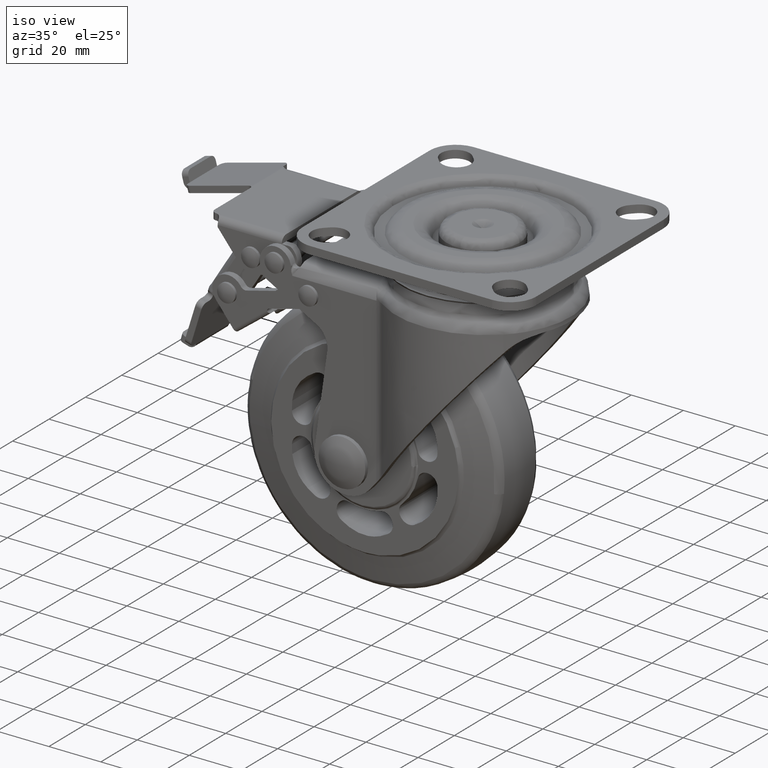
[diagram: clean part render]
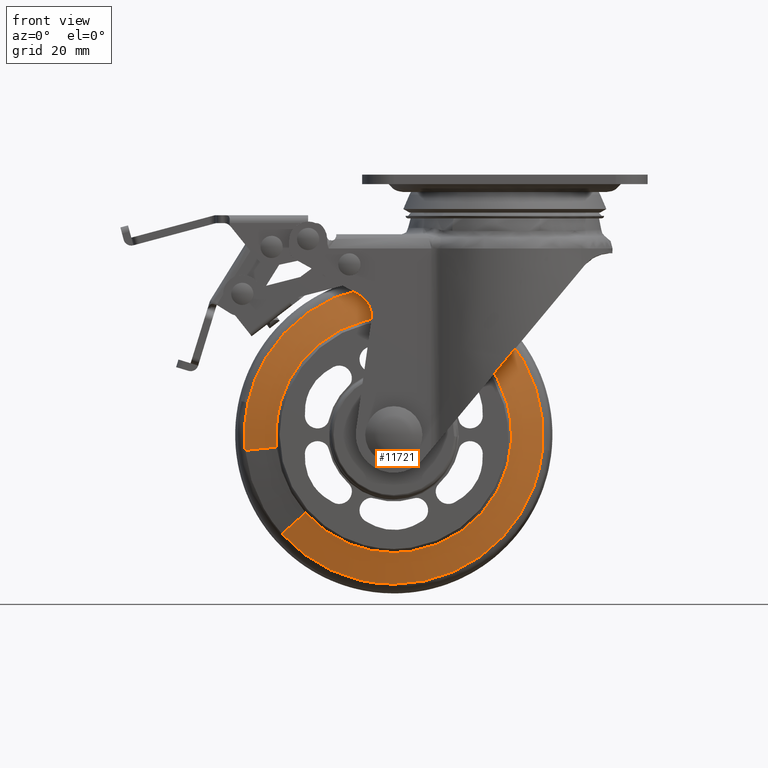
[diagram: tour spotlight — one face highlighted and labeled with its STEP entity id]
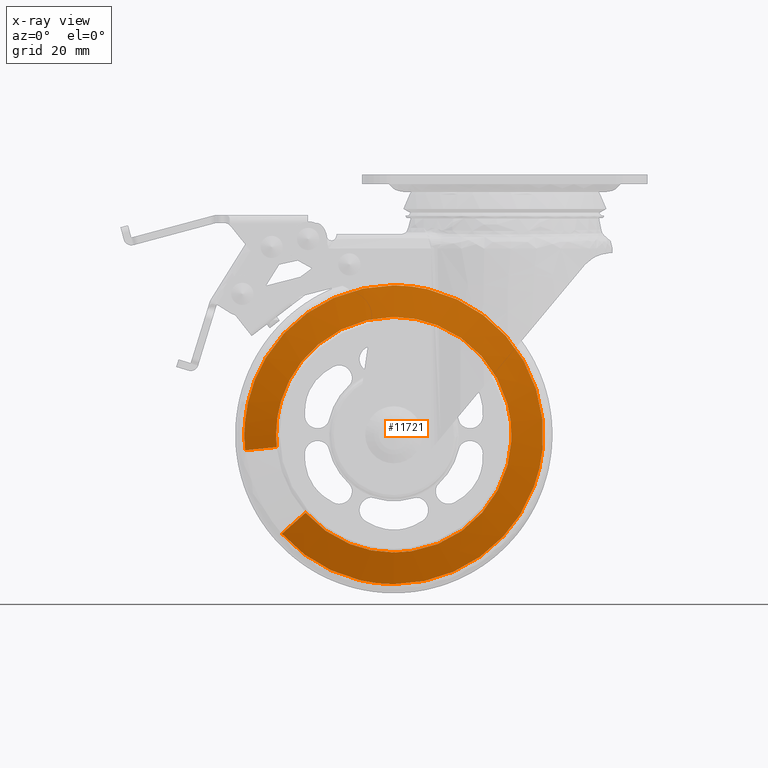
[diagram: x-ray of the same camera — body ghosted, this tour face saturated]
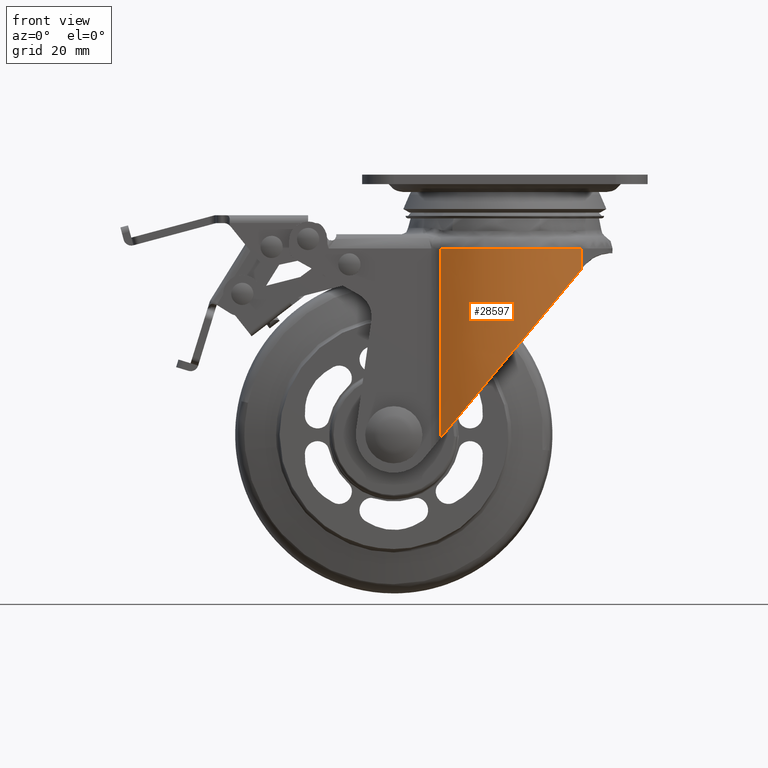
[diagram: tour spotlight — one face highlighted and labeled with its STEP entity id]
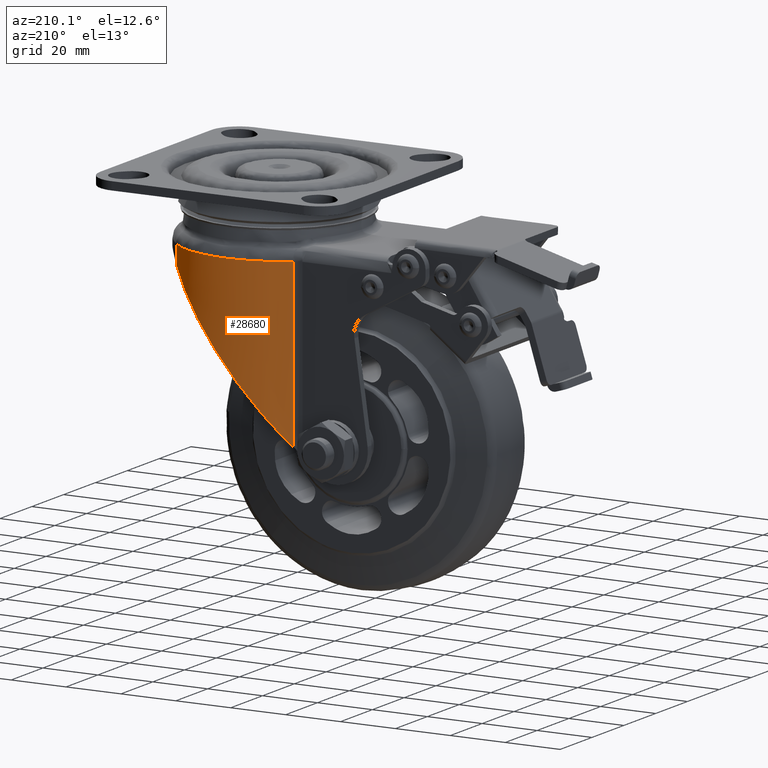
[diagram: tour spotlight — one face highlighted and labeled with its STEP entity id]
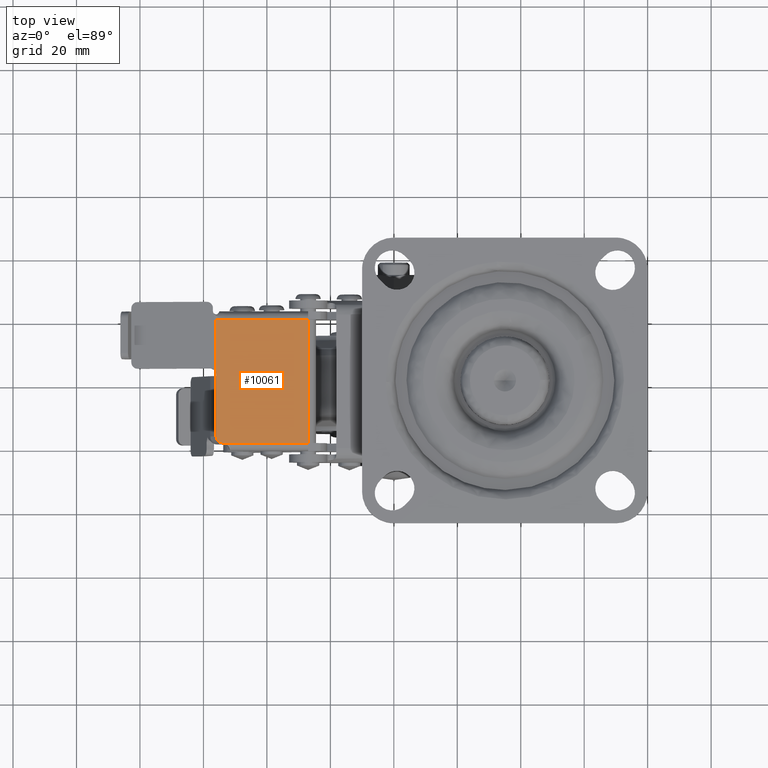
[diagram: tour spotlight — one face highlighted and labeled with its STEP entity id]
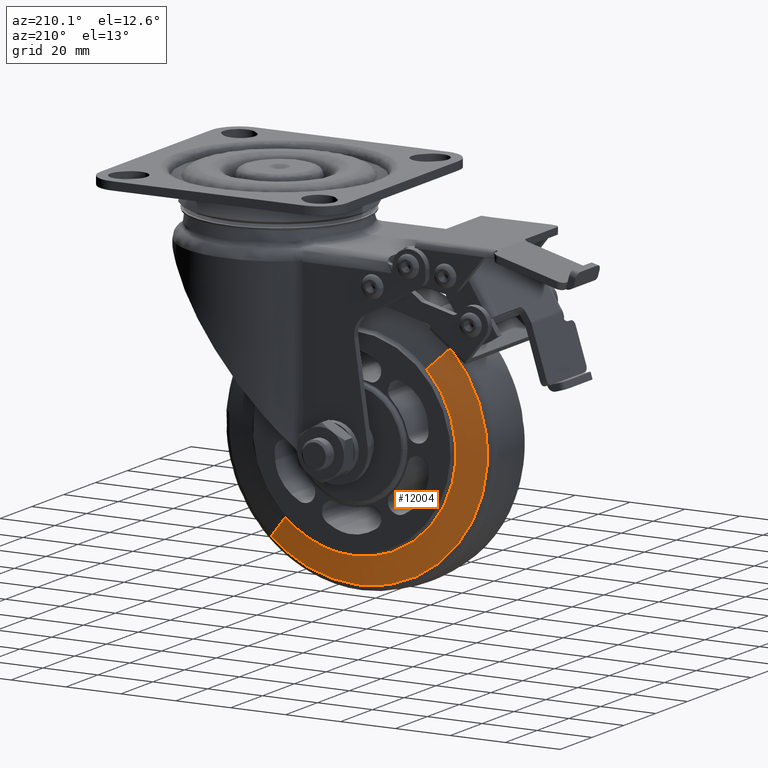
[diagram: tour spotlight — one face highlighted and labeled with its STEP entity id]
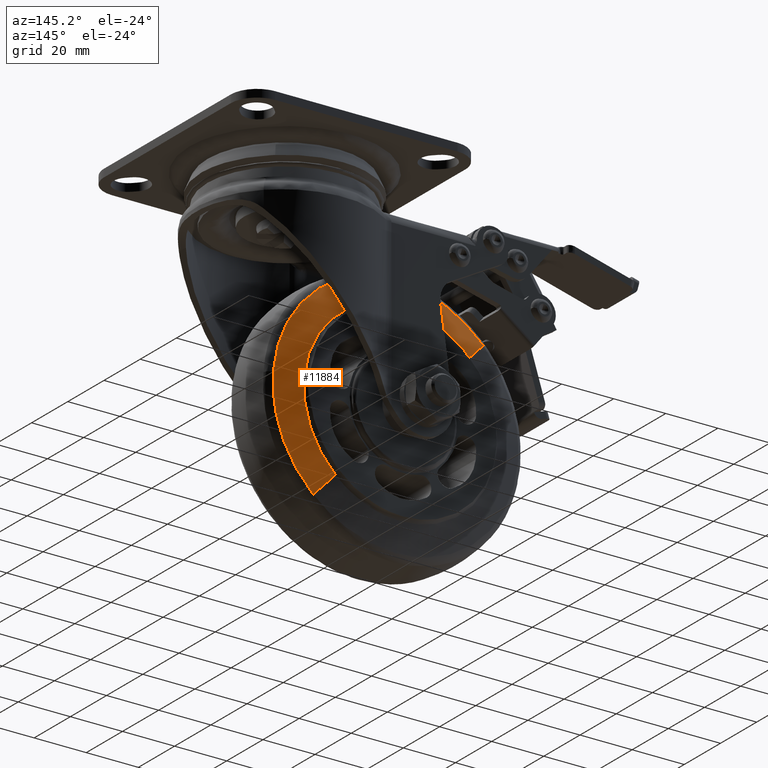
[diagram: tour spotlight — one face highlighted and labeled with its STEP entity id]
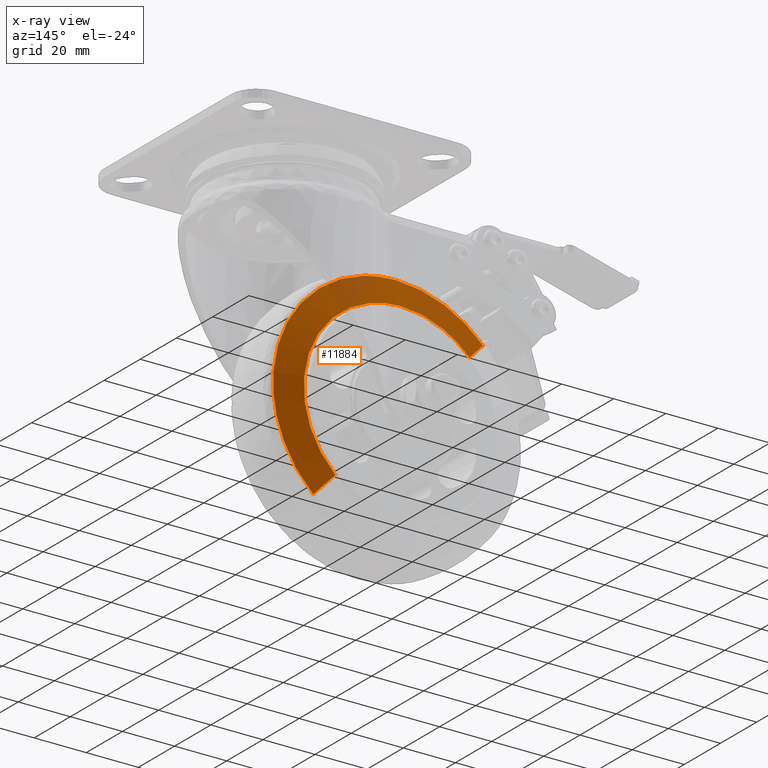
[diagram: x-ray of the same camera — body ghosted, this tour face saturated]
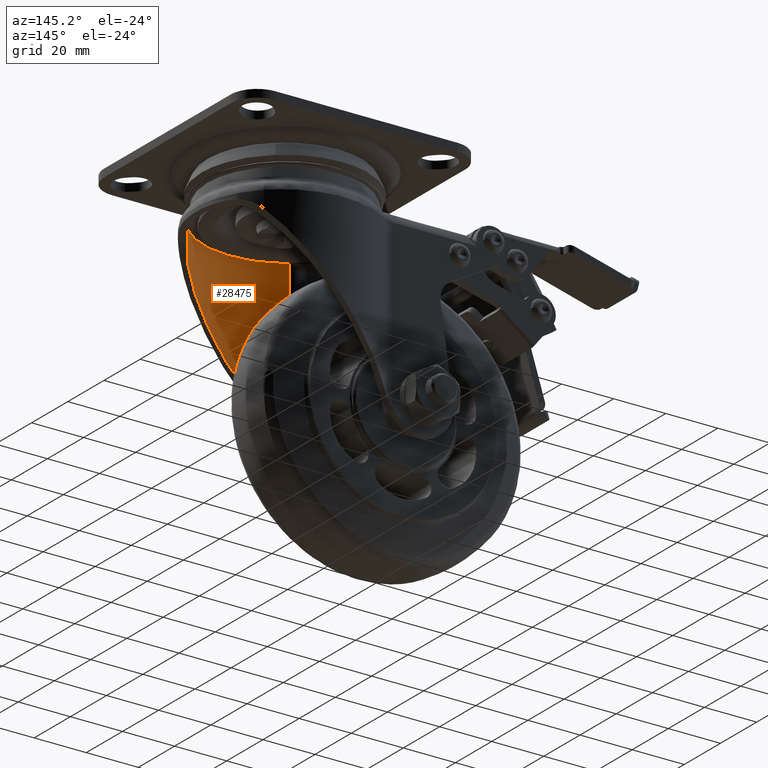
[diagram: tour spotlight — one face highlighted and labeled with its STEP entity id]
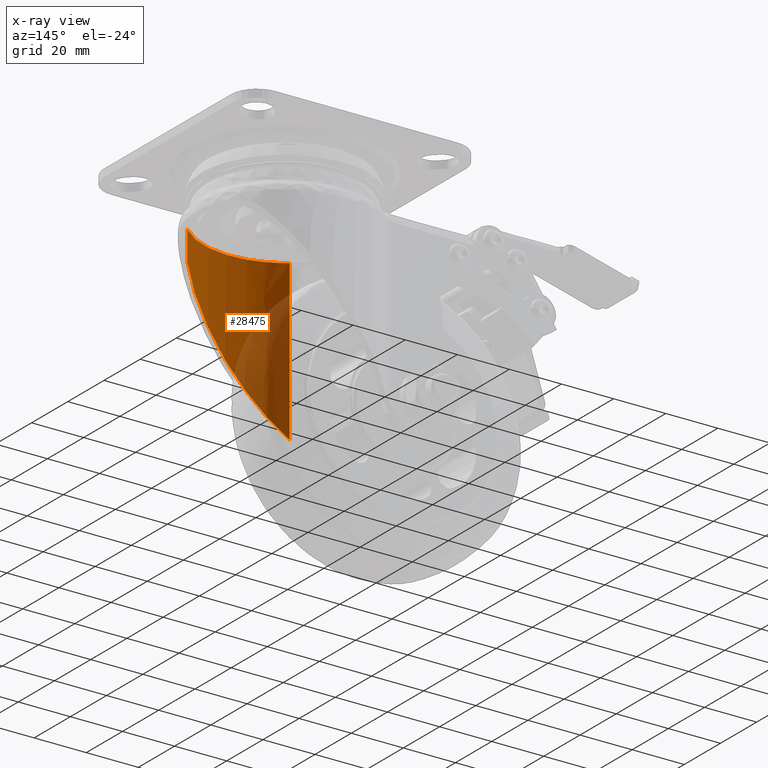
[diagram: x-ray of the same camera — body ghosted, this tour face saturated]
A machine part: a face-by-face anatomy tour. The part has 502 B-rep faces; the first image is the clean iso view, then the 7 largest visible faces are spotlighted one at a time (largest first), each with its STEP entity span.

Face 1 — front view, entity #11721. An x-ray twin of the same camera follows (body ghosted, this face saturated) — the face is partly hidden behind the body. In plain terms, the highlighted face is a freeform B-spline surface patch.
Definition (entity closure, byte-faithful):
#11510=CARTESIAN_POINT('',(-36.665251392505716,-13.616647339635406,-3.835200967554579));
#11511=CARTESIAN_POINT('',(-38.639300764044314,-13.616647339635412,15.037086842393304));
#11512=CARTESIAN_POINT('',(-24.427678613804989,-13.616647339635399,27.610468009032871));
#11513=CARTESIAN_POINT('',(3.182789395227887,-13.616647339635403,52.038146622837857));
#11514=CARTESIAN_POINT('',(27.610468009032871,-13.616647339635399,24.427678613804989));
#11515=CARTESIAN_POINT('',(52.038146622837857,-13.616647339635403,-3.182789395227887));
#11516=CARTESIAN_POINT('',(24.427678613804989,-13.616647339635399,-27.610468009032871));
#11517=CARTESIAN_POINT('',(-3.182789395227887,-13.616647339635403,-52.038146622837857));
#11518=CARTESIAN_POINT('',(-27.610468009032871,-13.616647339635399,-24.427678613804989));
#11519=CARTESIAN_POINT('',(-47.083662741596818,-10.831326102932731,-4.924971247830982));
#11520=CARTESIAN_POINT('',(-49.618637174194930,-10.831326102932731,19.309866934338359));
#11521=CARTESIAN_POINT('',(-31.368790277750499,-10.831326102932730,35.455967557900593));
#11522=CARTESIAN_POINT('',(4.087177280150087,-10.831326102932731,66.824757835651084));
#11523=CARTESIAN_POINT('',(35.455967557900593,-10.831326102932730,31.368790277750499));
#11524=CARTESIAN_POINT('',(66.824757835651084,-10.831326102932731,-4.087177280150087));
#11525=CARTESIAN_POINT('',(31.368790277750499,-10.831326102932730,-35.455967557900593));
#11526=CARTESIAN_POINT('',(-4.087177280150087,-10.831326102932731,-66.824757835651084));
#11527=CARTESIAN_POINT('',(-35.455967557900593,-10.831326102932730,-31.368790277750499));
#11535=(BOUNDED_SURFACE()B_SPLINE_SURFACE(2,1,((#11510,#11519),(#11511,#11520),(#11512,#11521),(#11513,#11522),(#11514,#11523),(#11515,#11524),(#11516,#11525),(#11517,#11526),(#11518,#11527)),.UNSPECIFIED.,.F.,.F.,.U.)B_SPLINE_SURFACE_WITH_KNOTS((3,2,2,2,3),(2,2),(0.0,47.061823993774993,125.498197316733300,203.934570639691710,282.370943962650020),(0.0,10.839230078482091),.UNSPECIFIED.)GEOMETRIC_REPRESENTATION_ITEM()RATIONAL_B_SPLINE_SURFACE(((0.859411254969543,0.859411254969543),(0.824264068711928,0.824264068711928),(1.0,1.0),(0.707106781186548,0.707106781186548),(1.0,1.0),(0.707106781186548,0.707106781186548),(1.0,1.0),(0.707106781186548,0.707106781186548),(1.0,1.0)))REPRESENTATION_ITEM('')SURFACE());
#11536=CARTESIAN_POINT('',(-37.114549942680163,-13.550369614932199,-0.000001801757048));
#11537=VERTEX_POINT('',#11536);
#11538=CARTESIAN_POINT('',(-36.913161374811978,-13.550369590192620,-3.861132457667963));
#11539=VERTEX_POINT('',#11538);
#11540=CARTESIAN_POINT('',(-37.114549942680163,-13.550369614932199,-0.000001801757048));
#11541=CARTESIAN_POINT('',(-37.114567235197661,-13.550369606670740,-1.289377918559623));
#11542=CARTESIAN_POINT('',(-37.047311808338677,-13.550369598409240,-2.578753876148766));
#11543=CARTESIAN_POINT('',(-36.913161374811978,-13.550369590192620,-3.861132457667963));
#11544=B_SPLINE_CURVE_WITH_KNOTS('',3,(#11540,#11541,#11542,#11543),.UNSPECIFIED.,.F.,.U.,(4,4),(4.386198E-010,3.868136360919361),.UNSPECIFIED.);
#11545=EDGE_CURVE('',#11537,#11539,#11544,.T.);
#11546=ORIENTED_EDGE('',*,*,#11545,.F.);
#11547=CARTESIAN_POINT('',(0.0,-13.550369614932199,37.114549942680199));
#11548=VERTEX_POINT('',#11547);
#11549=CARTESIAN_POINT('',(0.0,-13.550369614932199,37.114549942680199));
#11550=CARTESIAN_POINT('',(-2.125491910181842,-13.550369614932190,37.114704196811623));
#11551=CARTESIAN_POINT('',(-6.300543484334653,-13.550369614932210,36.754987460956791));
#11552=CARTESIAN_POINT('',(-11.681724559365209,-13.550369614932180,35.354251953060107));
#11553=CARTESIAN_POINT('',(-16.668759139261400,-13.550369614932221,33.288545492949943));
#11554=CARTESIAN_POINT('',(-21.669188854939762,-13.550369614932279,30.374443795508888));
#11555=CARTESIAN_POINT('',(-26.430333533427881,-13.550369614931970,26.318230018142369));
#11556=CARTESIAN_POINT('',(-30.030038652586629,-13.550369614932320,21.985923363355258));
#11557=CARTESIAN_POINT('',(-32.755253993407898,-13.550369614932141,17.682433881584419));
#11558=CARTESIAN_POINT('',(-34.574498470222167,-13.550369614932229,13.742550687607320));
#11559=CARTESIAN_POINT('',(-36.048123823442438,-13.550369614932199,9.188187287830978));
#11560=CARTESIAN_POINT('',(-36.909385160773873,-13.550369614932190,4.858264778941543));
#11561=CARTESIAN_POINT('',(-37.114581730324069,-13.550369614932210,1.518195979068340));
#11562=CARTESIAN_POINT('',(-37.114549942680163,-13.550369614932199,-0.000001801757048));
#11563=B_SPLINE_CURVE_WITH_KNOTS('',3,(#11549,#11550,#11551,#11552,#11553,#11554,#11555,#11556,#11557,#11558,#11559,#11560,#11561,#11562),.UNSPECIFIED.,.F.,.U.,(4,1,1,1,1,1,1,1,1,1,1,4),(0.000000084953378,6.376467333674910,12.525276525188120,16.624475284585380,22.545546127842361,29.832913040827520,35.298520092446822,39.397682966669457,45.091016416197583,48.279285932825807,53.744887889776621,58.299491190945602),.UNSPECIFIED.);
#11564=EDGE_CURVE('',#11548,#11537,#11563,.T.);
#11565=ORIENTED_EDGE('',*,*,#11564,.F.);
#11566=CARTESIAN_POINT('',(35.804168890937980,-13.550369618357530,9.775034860328475));
#11567=VERTEX_POINT('',#11566);
#11568=CARTESIAN_POINT('',(35.804168890937980,-13.550369618357530,9.775034860328475));
#11569=CARTESIAN_POINT('',(35.389184747907002,-13.550369618167100,11.295165833597849));
#11570=CARTESIAN_POINT('',(34.201479568026059,-13.550369617732860,14.760498939624950));
#11571=CARTESIAN_POINT('',(31.699442207876132,-13.550369617127821,19.590774005635371));
#11572=CARTESIAN_POINT('',(28.707311454808249,-13.550369616617120,23.665527742670228));
#11573=CARTESIAN_POINT('',(25.513720996335380,-13.550369616190469,27.072486627939011));
#11574=CARTESIAN_POINT('',(21.456648899374350,-13.550369615761630,30.493888498453050));
#11575=CARTESIAN_POINT('',(16.553527886787808,-13.550369615397759,33.399417192823947));
#11576=CARTESIAN_POINT('',(11.909600954121499,-13.550369615168959,35.224212023927869));
#11577=CARTESIAN_POINT('',(6.681053585525619,-13.550369614987851,36.671623667965889));
#11578=CARTESIAN_POINT('',(2.836456494028836,-13.550369614931819,37.115166211656728));
#11579=CARTESIAN_POINT('',(0.0,-13.550369614932199,37.114549942680199));
#11580=B_SPLINE_CURVE_WITH_KNOTS('',3,(#11568,#11569,#11570,#11571,#11572,#11573,#11574,#11575,#11576,#11577,#11578,#11579),.UNSPECIFIED.,.F.,.U.,(4,1,1,1,1,1,1,1,1,4),(0.000000061339854,4.727282053475136,10.967370127355000,16.261990860228959,19.854768855743551,24.960184812077760,32.145736283834530,36.873074768503699,39.898562197790000,48.407726145202410),.UNSPECIFIED.);
#11581=EDGE_CURVE('',#11567,#11548,#11580,.T.);
#11582=ORIENTED_EDGE('',*,*,#11581,.F.);
#11583=CARTESIAN_POINT('',(5.575555129735005,-13.550369615879010,-36.693364552445352));
#11584=VERTEX_POINT('',#11583);
#11585=CARTESIAN_POINT('',(5.575555129735005,-13.550369615879010,-36.693364552445352));
#11586=CARTESIAN_POINT('',(7.831811697776101,-13.550369615674400,-36.350820354751541));
#11587=CARTESIAN_POINT('',(11.088894158506820,-13.550369615418351,-35.542803297705852));
#11588=CARTESIAN_POINT('',(15.865348879003619,-13.550369615131229,-33.645669970755101));
#11589=CARTESIAN_POINT('',(20.039768891835500,-13.550369614953690,-31.401100306182180));
#11590=CARTESIAN_POINT('',(24.034194266430848,-13.550369614887810,-28.417023223242659));
#11591=CARTESIAN_POINT('',(27.783986506973381,-13.550369614930160,-24.780560410437118));
#11592=CARTESIAN_POINT('',(30.763859365055360,-13.550369615076420,-20.985727187448500));
#11593=CARTESIAN_POINT('',(33.337600769366382,-13.550369615349570,-16.532197461022971));
#11594=CARTESIAN_POINT('',(35.336190806522062,-13.550369615721401,-11.790327337180489));
#11595=CARTESIAN_POINT('',(36.553185285474918,-13.550369616180770,-7.036873679229863));
#11596=CARTESIAN_POINT('',(37.191911174398953,-13.550369616776740,-1.689063029061967));
#11597=CARTESIAN_POINT('',(37.104612661321347,-13.550369617459101,3.709156728143346));
#11598=CARTESIAN_POINT('',(36.340932586166552,-13.550369618053789,7.809428092570522));
#11599=CARTESIAN_POINT('',(35.804168890937980,-13.550369618357530,9.775034860328475));
#11600=B_SPLINE_CURVE_WITH_KNOTS('',3,(#11585,#11586,#11587,#11588,#11589,#11590,#11591,#11592,#11593,#11594,#11595,#11596,#11597,#11598,#11599),.UNSPECIFIED.,.F.,.U.,(4,1,1,1,1,1,1,1,1,1,1,1,4),(0.000000095696294,6.846262174356134,10.024874065644800,15.404114474508569,21.027849583416209,24.940013470265061,31.052786746978310,35.453911062258392,40.344107081192462,46.456848952765782,50.124512756655427,56.481755977588797,62.594494556041127),.UNSPECIFIED.);
#11601=EDGE_CURVE('',#11584,#11567,#11600,.T.);
#11602=ORIENTED_EDGE('',*,*,#11601,.F.);
#11603=CARTESIAN_POINT('',(0.0,-13.550369614932199,-37.114549942680199));
#11604=VERTEX_POINT('',#11603);
#11605=CARTESIAN_POINT('',(0.0,-13.550369614932199,-37.114549942680199));
#11606=CARTESIAN_POINT('',(1.865586214738752,-13.550369614932020,-37.114629853354103));
#11607=CARTESIAN_POINT('',(3.731150038557266,-13.550369615248901,-36.973675442732898));
#11608=CARTESIAN_POINT('',(5.575555129735005,-13.550369615879010,-36.693364552445352));
#11609=B_SPLINE_CURVE_WITH_KNOTS('',3,(#11605,#11606,#11607,#11608),.UNSPECIFIED.,.F.,.U.,(4,4),(6.864180E-010,5.596747455663808),.UNSPECIFIED.);
#11610=EDGE_CURVE('',#11604,#11584,#11609,.T.);
#11611=ORIENTED_EDGE('',*,*,#11610,.F.);
#11612=CARTESIAN_POINT('',(-27.797155151657670,-13.550369503904889,-24.592845445453481));
#11613=VERTEX_POINT('',#11612);
#11614=CARTESIAN_POINT('',(-27.797155151657670,-13.550369503904889,-24.592845445453481));
#11615=CARTESIAN_POINT('',(-26.279410921820268,-13.550369509967050,-26.308772995427589));
#11616=CARTESIAN_POINT('',(-23.883091265649799,-13.550369519538430,-28.558090187612130));
#11617=CARTESIAN_POINT('',(-20.022462261329551,-13.550369534958559,-31.323720631201720));
#11618=CARTESIAN_POINT('',(-16.329122964555811,-13.550369549710480,-33.450491590015147));
#11619=CARTESIAN_POINT('',(-12.004733763821070,-13.550369566982919,-35.228883888968703));
#11620=CARTESIAN_POINT('',(-6.463234366956493,-13.550369589116791,-36.710363857166882));
#11621=CARTESIAN_POINT('',(-2.536295913334896,-13.550369604801730,-37.114912789517298));
#11622=CARTESIAN_POINT('',(0.0,-13.550369614932199,-37.114549942680199));
#11623=B_SPLINE_CURVE_WITH_KNOTS('',3,(#11614,#11615,#11616,#11617,#11618,#11619,#11620,#11621,#11622),.UNSPECIFIED.,.F.,.U.,(4,1,1,1,1,1,4),(0.000000026665344,6.872458894888915,9.817799502680760,14.235838979649809,19.635594897732268,23.808162547695218,31.416955813785648),.UNSPECIFIED.);
#11624=EDGE_CURVE('',#11613,#11604,#11623,.T.);
#11625=ORIENTED_EDGE('',*,*,#11624,.F.);
#11626=CARTESIAN_POINT('',(-35.264613903331380,-10.899260769740360,-31.199494865088411));
#11627=VERTEX_POINT('',#11626);
#11628=CARTESIAN_POINT('',(-27.797155151657670,-13.550369503904889,-24.592845445453481));
#11629=CARTESIAN_POINT('',(-35.264613903331380,-10.899260769740360,-31.199494865088411));
#11630=QUASI_UNIFORM_CURVE('',1,(#11628,#11629),.UNSPECIFIED.,.F.,.U.);
#11631=EDGE_CURVE('',#11613,#11627,#11630,.T.);
#11632=ORIENTED_EDGE('',*,*,#11631,.T.);
#11633=CARTESIAN_POINT('',(0.0,-10.899260769657021,-47.085045116440398));
#11634=VERTEX_POINT('',#11633);
#11635=CARTESIAN_POINT('',(-35.264613903331380,-10.899260769740360,-31.199494865088411));
#11636=CARTESIAN_POINT('',(-33.614111556737377,-10.899260769814090,-33.065295161705862));
#11637=CARTESIAN_POINT('',(-30.915476593636800,-10.899260769903600,-35.666709849564441));
#11638=CARTESIAN_POINT('',(-26.195085465381599,-10.899260769992560,-39.240944069706522));
#11639=CARTESIAN_POINT('',(-21.283967291364071,-10.899260770031219,-42.178113464679988));
#11640=CARTESIAN_POINT('',(-15.620917648156061,-10.899260770005380,-44.550897074436513));
#11641=CARTESIAN_POINT('',(-8.510848743291794,-10.899260769903620,-46.527455108822913));
#11642=CARTESIAN_POINT('',(-3.425264830462060,-10.899260769772040,-47.085747941997262));
#11643=CARTESIAN_POINT('',(0.0,-10.899260769657021,-47.085045116440398));
#11644=B_SPLINE_CURVE_WITH_KNOTS('',3,(#11635,#11636,#11637,#11638,#11639,#11640,#11641,#11642,#11643),.UNSPECIFIED.,.F.,.U.,(4,1,1,1,1,1,4),(0.000000019208777,7.473150424355872,11.209741512455141,17.748757284914330,24.599127365813739,29.581249683380062,39.856842314858952),.UNSPECIFIED.);
#11645=EDGE_CURVE('',#11627,#11634,#11644,.T.);
#11646=ORIENTED_EDGE('',*,*,#11645,.T.);
#11647=CARTESIAN_POINT('',(46.847313525282672,-10.899260769102071,-4.725535872007858));
#11648=VERTEX_POINT('',#11647);
#11649=CARTESIAN_POINT('',(0.0,-10.899260769657021,-47.085045116440398));
#11650=CARTESIAN_POINT('',(3.064783795955538,-10.899260769657030,-47.085427596890199));
#11651=CARTESIAN_POINT('',(8.473025981953494,-10.899260769650081,-46.555066066842521));
#11652=CARTESIAN_POINT('',(15.790981493440270,-10.899260769623540,-44.530268139413089));
#11653=CARTESIAN_POINT('',(22.244625113507990,-10.899260769586441,-41.698319427949059));
#11654=CARTESIAN_POINT('',(27.674851341910941,-10.899260769541520,-38.272397051752897));
#11655=CARTESIAN_POINT('',(32.447723543290259,-10.899260769489180,-34.269987581114840));
#11656=CARTESIAN_POINT('',(35.790973422651142,-10.899260769442600,-30.718878567189989));
#11657=CARTESIAN_POINT('',(38.867061720059432,-10.899260769390141,-26.712124349054179));
#11658=CARTESIAN_POINT('',(41.779801193838431,-10.899260769328770,-22.036626587513350));
#11659=CARTESIAN_POINT('',(44.356255656167107,-10.899260769253370,-16.256013104774329));
#11660=CARTESIAN_POINT('',(46.069857565528331,-10.899260769174189,-10.264140867099000));
#11661=CARTESIAN_POINT('',(46.666414262999858,-10.899260769125950,-6.519230138372000));
#11662=CARTESIAN_POINT('',(46.847313525282672,-10.899260769102071,-4.725535872007858));
#11663=B_SPLINE_CURVE_WITH_KNOTS('',3,(#11649,#11650,#11651,#11652,#11653,#11654,#11655,#11656,#11657,#11658,#11659,#11660,#11661,#11662),.UNSPECIFIED.,.F.,.U.,(4,1,1,1,1,1,1,1,1,1,1,4),(0.000000068201629,9.194280078329051,16.225218905503151,22.715329097996840,30.287083565680721,35.425018186509860,41.374271276297179,44.889766986196868,50.568597982477449,57.869952666670443,63.819218825852708,69.227606040458326),.UNSPECIFIED.);
#11664=EDGE_CURVE('',#11634,#11648,#11663,.T.);
#11665=ORIENTED_EDGE('',*,*,#11664,.T.);
#11666=CARTESIAN_POINT('',(0.0,-10.899260769657021,47.085045116440398));
#11667=VERTEX_POINT('',#11666);
#11668=CARTESIAN_POINT('',(46.847313525282672,-10.899260769102071,-4.725535872007858));
#11669=CARTESIAN_POINT('',(47.094298642953177,-10.899260769148160,-2.278755326054843));
#11670=CARTESIAN_POINT('',(47.176097231608132,-10.899260769215640,1.420458300327646));
#11671=CARTESIAN_POINT('',(46.609990363494013,-10.899260769317680,7.341098470341240));
#11672=CARTESIAN_POINT('',(45.326516849715190,-10.899260769417999,13.474891162221089));
#11673=CARTESIAN_POINT('',(42.710855121182377,-10.899260769519740,20.293888017642541));
#11674=CARTESIAN_POINT('',(39.253594961895288,-10.899260769599080,26.245653066609350));
#11675=CARTESIAN_POINT('',(35.681257269274930,-10.899260769653701,30.879121697979979));
#11676=CARTESIAN_POINT('',(32.319917328182733,-10.899260769688849,34.338321190290117));
#11677=CARTESIAN_POINT('',(28.181043887123881,-10.899260769718889,37.860807542286857));
#11678=CARTESIAN_POINT('',(23.476136768657199,-10.899260769737280,40.994494827707619));
#11679=CARTESIAN_POINT('',(17.181481911483420,-10.899260769740771,44.013506499200624));
#11680=CARTESIAN_POINT('',(9.529188218378124,-10.899260769722000,46.410907394670353));
#11681=CARTESIAN_POINT('',(3.483910410900142,-10.899260769685251,47.085706216511909));
#11682=CARTESIAN_POINT('',(0.0,-10.899260769657021,47.085045116440398));
#11683=B_SPLINE_CURVE_WITH_KNOTS('',3,(#11668,#11669,#11670,#11671,#11672,#11673,#11674,#11675,#11676,#11677,#11678,#11679,#11680,#11681,#11682),.UNSPECIFIED.,.F.,.U.,(4,1,1,1,1,1,1,1,1,1,1,1,4),(0.000000057458593,7.377620233451182,11.066436378562811,17.829254435394510,26.129110535154670,32.891923074816688,38.425194437475149,43.650932764056599,47.339751177878512,54.717379558074100,60.558006253040382,68.243050790657804,78.694660690848295),.UNSPECIFIED.);
#11684=EDGE_CURVE('',#11648,#11667,#11683,.T.);
#11685=ORIENTED_EDGE('',*,*,#11684,.T.);
#11686=CARTESIAN_POINT('',(-45.988351419628998,-10.899260767242550,10.103118735175119));
#11687=VERTEX_POINT('',#11686);
#11688=CARTESIAN_POINT('',(0.0,-10.899260769657021,47.085045116440398));
#11689=CARTESIAN_POINT('',(-2.574412661450421,-10.899260769656960,47.085251454480343));
#11690=CARTESIAN_POINT('',(-7.307919431384300,-10.899260769631740,46.695831678218497));
#11691=CARTESIAN_POINT('',(-13.544611846575799,-10.899260769534999,45.217020996897233));
#11692=CARTESIAN_POINT('',(-19.627930724741741,-10.899260769388080,42.965405333589914));
#11693=CARTESIAN_POINT('',(-24.916639801509689,-10.899260769202931,40.130376200920423));
#11694=CARTESIAN_POINT('',(-30.024817576986798,-10.899260768959961,36.408439607404219));
#11695=CARTESIAN_POINT('',(-33.874683135175310,-10.899260768727681,32.850192943755403));
#11696=CARTESIAN_POINT('',(-37.618787254411792,-10.899260768443810,28.502854529396370));
#11697=CARTESIAN_POINT('',(-40.637745393400287,-10.899260768150700,24.012678351801910));
#11698=CARTESIAN_POINT('',(-43.802942114743757,-10.899260767744080,17.785299340193308));
#11699=CARTESIAN_POINT('',(-45.311637529521157,-10.899260767443840,13.185468513786949));
#11700=CARTESIAN_POINT('',(-45.988351419628998,-10.899260767242550,10.103118735175119));
#11701=B_SPLINE_CURVE_WITH_KNOTS('',3,(#11688,#11689,#11690,#11691,#11692,#11693,#11694,#11695,#11696,#11697,#11698,#11699,#11700),.UNSPECIFIED.,.F.,.U.,(4,1,1,1,1,1,1,1,1,1,4),(0.000000060108043,7.723203713347054,14.200741049460040,19.183466655424770,27.155836394624149,32.138483305979477,38.117775463469798,42.851375013001302,49.328916456432736,54.311632166124468,63.778793598023000),.UNSPECIFIED.);
#11702=EDGE_CURVE('',#11667,#11687,#11701,.T.);
#11703=ORIENTED_EDGE('',*,*,#11702,.T.);
#11704=CARTESIAN_POINT('',(-46.829555143729081,-10.899260768308570,-4.898391484480755));
#11705=VERTEX_POINT('',#11704);
#11706=CARTESIAN_POINT('',(-45.988351419628998,-10.899260767242550,10.103118735175119));
#11707=CARTESIAN_POINT('',(-46.443734770703308,-10.899260767401231,8.030585978132519));
#11708=CARTESIAN_POINT('',(-47.190320288513952,-10.899260767771080,3.044801141874044));
#11709=CARTESIAN_POINT('',(-47.132386587627970,-10.899260768118671,-2.006293874447995));
#11710=CARTESIAN_POINT('',(-46.829555143729081,-10.899260768308570,-4.898391484480755));
#11711=B_SPLINE_CURVE_WITH_KNOTS('',3,(#11706,#11707,#11708,#11709,#11710),.UNSPECIFIED.,.F.,.U.,(4,1,4),(3.325013E-009,6.365925355876847,15.089583029655239),.UNSPECIFIED.);
#11712=EDGE_CURVE('',#11687,#11705,#11711,.T.);
#11713=ORIENTED_EDGE('',*,*,#11712,.T.);
#11714=CARTESIAN_POINT('',(-36.913161374811978,-13.550369590192620,-3.861132457667963));
#11715=CARTESIAN_POINT('',(-46.829555143729081,-10.899260768308570,-4.898391484480755));
#11716=QUASI_UNIFORM_CURVE('',1,(#11714,#11715),.UNSPECIFIED.,.F.,.U.);
#11717=EDGE_CURVE('',#11539,#11705,#11716,.T.);
#11718=ORIENTED_EDGE('',*,*,#11717,.F.);
#11719=EDGE_LOOP('',(#11546,#11565,#11582,#11602,#11611,#11625,#11632,#11646,#11665,#11685,#11703,#11713,#11718));
#11720=FACE_OUTER_BOUND('',#11719,.T.);
#11721=ADVANCED_FACE('',(#11720),#11535,.T.);

Face 2 — front view, entity #28597. In plain terms, the highlighted face is a freeform B-spline surface patch.
Definition (entity closure, byte-faithful):
#25474=CARTESIAN_POINT('',(14.699913365306619,-26.444384949429299,58.699997000000003));
#25475=VERTEX_POINT('',#25474);
#25556=CARTESIAN_POINT('',(14.699913365306600,-26.444384949429299,-1.108439403102650));
#25557=VERTEX_POINT('',#25556);
#25573=CARTESIAN_POINT('',(14.699913365306619,-26.444384949429299,58.699997000000003));
#25574=CARTESIAN_POINT('',(14.699913365306600,-26.444384949429299,-1.108439403102650));
#25575=QUASI_UNIFORM_CURVE('',1,(#25573,#25574),.UNSPECIFIED.,.F.,.U.);
#25576=EDGE_CURVE('',#25475,#25557,#25575,.T.);
#27785=CARTESIAN_POINT('',(59.178670323379002,-23.192696635256901,52.235690997847897));
#27786=VERTEX_POINT('',#27785);
#27794=CARTESIAN_POINT('',(14.699913365306600,-26.444384949429299,-1.108439403102650));
#27795=CARTESIAN_POINT('',(38.302350855209227,-43.463369141849455,27.198365673048205));
#27796=CARTESIAN_POINT('',(59.178670323379002,-23.192696635256901,52.235690997847897));
#27804=(BOUNDED_CURVE()B_SPLINE_CURVE(2,(#27794,#27795,#27796),.UNSPECIFIED.,.F.,.U.)CURVE()GEOMETRIC_REPRESENTATION_ITEM()QUASI_UNIFORM_CURVE()RATIONAL_B_SPLINE_CURVE((1.0,0.766319680576949,1.0))REPRESENTATION_ITEM(''));
#27805=EDGE_CURVE('',#25557,#27786,#27804,.T.);
#28556=CARTESIAN_POINT('',(60.241827458864989,-22.114337537523049,-2.603650313180218));
#28557=CARTESIAN_POINT('',(60.241827458864989,-22.114337537523049,60.232588182829502));
#28558=CARTESIAN_POINT('',(38.412325273445745,-45.244210927250023,-2.603650313180217));
#28559=CARTESIAN_POINT('',(38.412325273445745,-45.244210927250023,60.232588182829502));
#28560=CARTESIAN_POINT('',(13.467901558284529,-25.513677883094172,-2.603650313180218));
#28561=CARTESIAN_POINT('',(13.467901558284529,-25.513677883094172,60.232588182829502));
#28569=(BOUNDED_SURFACE()B_SPLINE_SURFACE(1,2,((#28556,#28558,#28560),(#28557,#28559,#28561)),.UNSPECIFIED.,.F.,.F.,.U.)B_SPLINE_SURFACE_WITH_KNOTS((2,2),(3,3),(0.0,62.836238496009720),(0.0,53.989409062965997),.UNSPECIFIED.)GEOMETRIC_REPRESENTATION_ITEM()RATIONAL_B_SPLINE_SURFACE(((1.0,0.737277336810124,1.0),(1.0,0.737277336810124,1.0)))REPRESENTATION_ITEM('')SURFACE());
#28570=CARTESIAN_POINT('',(59.178670323379002,-23.192696635256901,58.699997000000003));
#28571=VERTEX_POINT('',#28570);
#28572=CARTESIAN_POINT('',(59.178670323379002,-23.192696635256901,58.699997000000003));
#28573=CARTESIAN_POINT('',(58.047603559894966,-24.290991521971851,58.699997000000018));
#28574=CARTESIAN_POINT('',(55.346115182719643,-26.578292165660731,58.699996999999932));
#28575=CARTESIAN_POINT('',(50.867655377892298,-29.323586059625789,58.699996999999982));
#28576=CARTESIAN_POINT('',(46.484535247017760,-31.134672860054490,58.699997000000302));
#28577=CARTESIAN_POINT('',(42.227736209874102,-32.321576569129142,58.699996999999868));
#28578=CARTESIAN_POINT('',(37.980073321699173,-32.984248192026577,58.699997000000053));
#28579=CARTESIAN_POINT('',(33.555967579253597,-33.053821101559301,58.699996999999968));
#28580=CARTESIAN_POINT('',(29.536461344989512,-32.633506418543931,58.699997000000010));
#28581=CARTESIAN_POINT('',(25.089445629855391,-31.683746326205171,58.699997000000131));
#28582=CARTESIAN_POINT('',(19.983470926609542,-29.791369692721869,58.699996999999243));
#28583=CARTESIAN_POINT('',(16.387829847274158,-27.661697809976729,58.699997000001353));
#28584=CARTESIAN_POINT('',(14.699913365306619,-26.444384949429299,58.699997000000003));
#28585=B_SPLINE_CURVE_WITH_KNOTS('',3,(#28572,#28573,#28574,#28575,#28576,#28577,#28578,#28579,#28580,#28581,#28582,#28583,#28584),.UNSPECIFIED.,.F.,.U.,(4,1,1,1,1,1,1,1,1,1,4),(0.000000072439249,4.729716454258011,10.594574668329370,15.702701036144990,18.918908931198160,23.837850762169570,28.567530672510092,32.162103104637787,35.945901467615172,42.189139456957442,48.432374550382363),.UNSPECIFIED.);
#28586=EDGE_CURVE('',#28571,#25475,#28585,.T.);
#28587=ORIENTED_EDGE('',*,*,#28586,.T.);
#28588=ORIENTED_EDGE('',*,*,#25576,.T.);
#28589=ORIENTED_EDGE('',*,*,#27805,.T.);
#28590=CARTESIAN_POINT('',(59.178670323379002,-23.192696635256901,52.235690997847897));
#28591=CARTESIAN_POINT('',(59.178670323379002,-23.192696635256901,58.699997000000003));
#28592=QUASI_UNIFORM_CURVE('',1,(#28590,#28591),.UNSPECIFIED.,.F.,.U.);
#28593=EDGE_CURVE('',#27786,#28571,#28592,.T.);
#28594=ORIENTED_EDGE('',*,*,#28593,.T.);
#28595=EDGE_LOOP('',(#28587,#28588,#28589,#28594));
#28596=FACE_OUTER_BOUND('',#28595,.T.);
#28597=ADVANCED_FACE('',(#28596),#28569,.T.);

Face 3 — auxiliary view, entity #28680. In plain terms, the highlighted face is a freeform B-spline surface patch.
Definition (entity closure, byte-faithful):
#25177=CARTESIAN_POINT('',(14.699913365306539,26.444384949429200,58.699997000000003));
#25178=VERTEX_POINT('',#25177);
#25263=CARTESIAN_POINT('',(14.699913365306561,26.444384949429200,-1.108439403102720));
#25264=VERTEX_POINT('',#25263);
#25284=CARTESIAN_POINT('',(14.699913365306561,26.444384949429200,-1.108439403102720));
#25285=CARTESIAN_POINT('',(14.699913365306539,26.444384949429200,58.699997000000003));
#25286=QUASI_UNIFORM_CURVE('',1,(#25284,#25285),.UNSPECIFIED.,.F.,.U.);
#25287=EDGE_CURVE('',#25264,#25178,#25286,.T.);
#27864=CARTESIAN_POINT('',(59.178670323378803,23.192696635256851,52.235690997847797));
#27865=VERTEX_POINT('',#27864);
#27866=CARTESIAN_POINT('',(59.178670323378803,23.192696635256851,52.235690997847797));
#27867=CARTESIAN_POINT('',(38.302350855209241,43.463369141849448,27.198365673048233));
#27868=CARTESIAN_POINT('',(14.699913365306561,26.444384949429200,-1.108439403102720));
#27876=(BOUNDED_CURVE()B_SPLINE_CURVE(2,(#27866,#27867,#27868),.UNSPECIFIED.,.F.,.U.)CURVE()GEOMETRIC_REPRESENTATION_ITEM()QUASI_UNIFORM_CURVE()RATIONAL_B_SPLINE_CURVE((1.0,0.766319680576946,1.0))REPRESENTATION_ITEM(''));
#27877=EDGE_CURVE('',#27865,#25264,#27876,.T.);
#28612=CARTESIAN_POINT('',(59.178670323378803,23.192696635256851,58.699997000000003));
#28613=VERTEX_POINT('',#28612);
#28614=CARTESIAN_POINT('',(59.178670323378803,23.192696635256851,52.235690997847797));
#28615=CARTESIAN_POINT('',(59.178670323378803,23.192696635256851,58.699997000000003));
#28616=QUASI_UNIFORM_CURVE('',1,(#28614,#28615),.UNSPECIFIED.,.F.,.U.);
#28617=EDGE_CURVE('',#27865,#28613,#28616,.T.);
#28644=CARTESIAN_POINT('',(14.455010194781700,26.266163551623460,-2.603650313180289));
#28645=CARTESIAN_POINT('',(14.455010194781700,26.266163551623460,60.232588182829502));
#28646=CARTESIAN_POINT('',(39.204798976096065,44.442835092344382,-2.603650313180289));
#28647=CARTESIAN_POINT('',(39.204798976096065,44.442835092344382,60.232588182829502));
#28648=CARTESIAN_POINT('',(60.262224871681823,22.092706509473938,-2.603650313180289));
#28649=CARTESIAN_POINT('',(60.262224871681823,22.092706509473938,60.232588182829502));
#28657=(BOUNDED_SURFACE()B_SPLINE_SURFACE(1,2,((#28644,#28646,#28648),(#28645,#28647,#28649)),.UNSPECIFIED.,.F.,.F.,.U.)B_SPLINE_SURFACE_WITH_KNOTS((2,2),(3,3),(0.0,62.836238496009798),(0.0,52.599321194500547),.UNSPECIFIED.)GEOMETRIC_REPRESENTATION_ITEM()RATIONAL_B_SPLINE_SURFACE(((1.0,0.748955720789002,1.0),(1.0,0.748955720789002,1.0)))REPRESENTATION_ITEM('')SURFACE());
#28658=ORIENTED_EDGE('',*,*,#27877,.T.);
#28659=ORIENTED_EDGE('',*,*,#25287,.T.);
#28660=CARTESIAN_POINT('',(14.699913365306539,26.444384949429200,58.699997000000003));
#28661=CARTESIAN_POINT('',(16.285529922940380,27.587912276636381,58.699997000000387));
#28662=CARTESIAN_POINT('',(18.782284219600879,29.085076074770392,58.699996999999392));
#28663=CARTESIAN_POINT('',(22.941132377925911,30.916740327779021,58.699997000000302));
#28664=CARTESIAN_POINT('',(27.406183478409609,32.313445856634331,58.699996999999961));
#28665=CARTESIAN_POINT('',(32.420431319800883,33.032026961515207,58.699997000000181));
#28666=CARTESIAN_POINT('',(37.031526090803027,33.009448489896762,58.699997000000003));
#28667=CARTESIAN_POINT('',(40.858577361598329,32.571863410206703,58.699996999999932));
#28668=CARTESIAN_POINT('',(44.493194314872632,31.748114595597759,58.699997000000067));
#28669=CARTESIAN_POINT('',(48.254406540459442,30.451870910628749,58.699996999999861));
#28670=CARTESIAN_POINT('',(51.560189429751347,28.869818514915291,58.699997000000259));
#28671=CARTESIAN_POINT('',(55.374759317422480,26.517154728766741,58.699996999999662));
#28672=CARTESIAN_POINT('',(57.731017677831403,24.598652289166079,58.699997000001389));
#28673=CARTESIAN_POINT('',(59.178670323378803,23.192696635256851,58.699997000000003));
#28674=B_SPLINE_CURVE_WITH_KNOTS('',3,(#28660,#28661,#28662,#28663,#28664,#28665,#28666,#28667,#28668,#28669,#28670,#28671,#28672,#28673),.UNSPECIFIED.,.F.,.U.,(4,1,1,1,1,1,1,1,1,1,1,4),(0.000000072418771,5.864825153637135,8.702675296696889,13.621607826275220,19.864851626277570,23.837850762158752,27.432357785338990,31.405366820898131,34.999952123141021,39.351306631027420,42.378357932146272,48.432374550382193),.UNSPECIFIED.);
#28675=EDGE_CURVE('',#25178,#28613,#28674,.T.);
#28676=ORIENTED_EDGE('',*,*,#28675,.T.);
#28677=ORIENTED_EDGE('',*,*,#28617,.F.);
#28678=EDGE_LOOP('',(#28658,#28659,#28676,#28677));
#28679=FACE_OUTER_BOUND('',#28678,.T.);
#28680=ADVANCED_FACE('',(#28679),#28657,.T.);

Face 4 — top view, entity #10061. In plain terms, the highlighted face is a freeform B-spline surface patch.
Definition (entity closure, byte-faithful):
#8299=CARTESIAN_POINT('',(-56.0,1.999999999999890,69.200012000000100));
#8300=VERTEX_POINT('',#8299);
#8379=CARTESIAN_POINT('',(-54.122691337498694,-19.500000000000000,69.200012000000100));
#8380=VERTEX_POINT('',#8379);
#8386=CARTESIAN_POINT('',(-56.0,-17.503766838342099,69.200012000000100));
#8387=VERTEX_POINT('',#8386);
#8388=CARTESIAN_POINT('',(-56.0,-17.503766838342099,69.200012000000100));
#8389=CARTESIAN_POINT('',(-56.000324882447892,-17.771126637106580,69.200012000000271));
#8390=CARTESIAN_POINT('',(-55.923182349732393,-18.148211534805849,69.200011999999973));
#8391=CARTESIAN_POINT('',(-55.666433171302522,-18.637101430703471,69.200012000000171));
#8392=CARTESIAN_POINT('',(-55.341318815371572,-19.026648909206578,69.200011999999759));
#8393=CARTESIAN_POINT('',(-54.808114668717607,-19.376148820715489,69.200012000001394));
#8394=CARTESIAN_POINT('',(-54.358122882970527,-19.485696105709550,69.200011999999177));
#8395=CARTESIAN_POINT('',(-54.122691337498694,-19.500000000000000,69.200012000000100));
#8396=B_SPLINE_CURVE_WITH_KNOTS('',3,(#8388,#8389,#8390,#8391,#8392,#8393,#8394,#8395),.UNSPECIFIED.,.F.,.U.,(4,1,1,1,1,4),(0.000000357644811,0.801897641048240,1.132091383739315,1.650939111216283,2.311344553315037,3.018894182178423),.UNSPECIFIED.);
#8397=EDGE_CURVE('',#8387,#8380,#8396,.T.);
#8689=CARTESIAN_POINT('',(-56.0,19.499999999999751,69.200012000000100));
#8690=VERTEX_POINT('',#8689);
#9184=CARTESIAN_POINT('',(-26.999999999999599,19.499999999999751,69.200012000000100));
#9185=VERTEX_POINT('',#9184);
#9186=CARTESIAN_POINT('',(-26.999999999999599,19.499999999999751,69.200012000000100));
#9187=CARTESIAN_POINT('',(-56.0,19.499999999999751,69.200012000000100));
#9188=QUASI_UNIFORM_CURVE('',1,(#9186,#9187),.UNSPECIFIED.,.F.,.U.);
#9189=EDGE_CURVE('',#9185,#8690,#9188,.T.);
#9235=CARTESIAN_POINT('',(-26.999999999999599,-19.500000000000000,69.200012000000100));
#9236=VERTEX_POINT('',#9235);
#9237=CARTESIAN_POINT('',(-54.122691337498694,-19.500000000000000,69.200012000000100));
#9238=CARTESIAN_POINT('',(-26.999999999999599,-19.500000000000000,69.200012000000100));
#9239=QUASI_UNIFORM_CURVE('',1,(#9237,#9238),.UNSPECIFIED.,.F.,.U.);
#9240=EDGE_CURVE('',#8380,#9236,#9239,.T.);
#9482=CARTESIAN_POINT('',(-56.0,19.499999999999751,69.200012000000100));
#9483=CARTESIAN_POINT('',(-56.0,1.999999999999890,69.200012000000100));
#9484=QUASI_UNIFORM_CURVE('',1,(#9482,#9483),.UNSPECIFIED.,.F.,.U.);
#9485=EDGE_CURVE('',#8690,#8300,#9484,.T.);
#10031=CARTESIAN_POINT('',(-26.999999999999599,19.499999999999751,69.200012000000100));
#10032=CARTESIAN_POINT('',(-26.999999999999599,-19.500000000000000,69.200012000000100));
#10033=QUASI_UNIFORM_CURVE('',1,(#10031,#10032),.UNSPECIFIED.,.F.,.U.);
#10034=EDGE_CURVE('',#9185,#9236,#10033,.T.);
#10044=CARTESIAN_POINT('',(-25.551450056207202,-21.448049924410419,69.200012000000100));
#10045=CARTESIAN_POINT('',(-57.448550721633012,-21.448049924410419,69.200012000000100));
#10046=CARTESIAN_POINT('',(-25.551450056207202,21.448050970471691,69.200012000000100));
#10047=CARTESIAN_POINT('',(-57.448550721633012,21.448050970471691,69.200012000000100));
#10048=B_SPLINE_SURFACE_WITH_KNOTS('',1,1,((#10044,#10046),(#10045,#10047)),.UNSPECIFIED.,.F.,.F.,.U.,(2,2),(2,2),(0.0,31.897100665425810),(0.0,42.896100894882110),.UNSPECIFIED.);
#10049=CARTESIAN_POINT('',(-56.0,1.999999999999890,69.200012000000100));
#10050=CARTESIAN_POINT('',(-56.0,-17.503766838342099,69.200012000000100));
#10051=QUASI_UNIFORM_CURVE('',1,(#10049,#10050),.UNSPECIFIED.,.F.,.U.);
#10052=EDGE_CURVE('',#8300,#8387,#10051,.T.);
#10053=ORIENTED_EDGE('',*,*,#10052,.T.);
#10054=ORIENTED_EDGE('',*,*,#8397,.T.);
#10055=ORIENTED_EDGE('',*,*,#9240,.T.);
#10056=ORIENTED_EDGE('',*,*,#10034,.F.);
#10057=ORIENTED_EDGE('',*,*,#9189,.T.);
#10058=ORIENTED_EDGE('',*,*,#9485,.T.);
#10059=EDGE_LOOP('',(#10053,#10054,#10055,#10056,#10057,#10058));
#10060=FACE_OUTER_BOUND('',#10059,.T.);
#10061=ADVANCED_FACE('',(#10060),#10048,.F.);

Face 5 — auxiliary view, entity #12004. In plain terms, the highlighted face is a freeform B-spline surface patch.
Definition (entity closure, byte-faithful):
#11783=CARTESIAN_POINT('',(31.640974822570019,10.899262714346580,-34.869033499070767));
#11784=VERTEX_POINT('',#11783);
#11799=CARTESIAN_POINT('',(24.940843101294071,13.550369618832260,-27.485344490391821));
#11800=VERTEX_POINT('',#11799);
#11801=CARTESIAN_POINT('',(24.940843101294071,13.550369618832260,-27.485344490391821));
#11802=CARTESIAN_POINT('',(31.640974822570019,10.899262714346580,-34.869033499070767));
#11803=QUASI_UNIFORM_CURVE('',1,(#11801,#11802),.UNSPECIFIED.,.F.,.U.);
#11804=EDGE_CURVE('',#11800,#11784,#11803,.T.);
#11831=CARTESIAN_POINT('',(-26.471969416747150,13.550369614941321,26.013931895119150));
#11832=VERTEX_POINT('',#11831);
#11844=CARTESIAN_POINT('',(-33.583429576355059,10.899260770175450,33.002344330723233));
#11845=VERTEX_POINT('',#11844);
#11846=CARTESIAN_POINT('',(-26.471969416747150,13.550369614941321,26.013931895119150));
#11847=CARTESIAN_POINT('',(-33.583429576355059,10.899260770175450,33.002344330723233));
#11848=QUASI_UNIFORM_CURVE('',1,(#11846,#11847),.UNSPECIFIED.,.F.,.U.);
#11849=EDGE_CURVE('',#11832,#11845,#11848,.T.);
#11885=CARTESIAN_POINT('',(-26.294182897382321,13.616647341791939,25.839221569120959));
#11886=CARTESIAN_POINT('',(-52.133404466503286,13.616647341791936,-0.454961328261362));
#11887=CARTESIAN_POINT('',(-25.839221569120959,13.616647341791939,-26.294182897382321));
#11888=CARTESIAN_POINT('',(-1.008219500597799,13.616647341791936,-50.695540670540034));
#11889=CARTESIAN_POINT('',(24.773339680727272,13.616647341791936,-27.300752125214849));
#11890=CARTESIAN_POINT('',(-33.765660751516272,10.831326102833140,33.181422407807872));
#11891=CARTESIAN_POINT('',(-66.947083159324137,10.831326102833136,-0.584238343708399));
#11892=CARTESIAN_POINT('',(-33.181422407807872,10.831326102833140,-33.765660751516272));
#11893=CARTESIAN_POINT('',(-1.294704526590844,10.831326102833135,-65.100651143130335));
#11894=CARTESIAN_POINT('',(31.812670757104566,10.831326102833131,-35.058246081227814));
#11902=(BOUNDED_SURFACE()B_SPLINE_SURFACE(2,1,((#11885,#11890),(#11886,#11891),(#11887,#11892),(#11888,#11893),(#11889,#11894)),.UNSPECIFIED.,.F.,.F.,.U.)B_SPLINE_SURFACE_WITH_KNOTS((3,2,3),(2,2),(0.0,78.436373323578991,153.735291714214810),(0.0,10.839230087262839),.UNSPECIFIED.)GEOMETRIC_REPRESENTATION_ITEM()RATIONAL_B_SPLINE_SURFACE(((1.0,1.0),(0.707106781186548,0.707106781186548),(1.0,1.0),(0.718822509939086,0.718822509939086),(0.977505800795127,0.977505800795127)))REPRESENTATION_ITEM('')SURFACE());
#11903=CARTESIAN_POINT('',(0.0,10.899260770135820,-47.085045114639698));
#11904=VERTEX_POINT('',#11903);
#11905=CARTESIAN_POINT('',(0.0,10.899260770135820,-47.085045114639698));
#11906=CARTESIAN_POINT('',(2.258926448184832,10.899260909022180,-47.085165948863718));
#11907=CARTESIAN_POINT('',(5.963512279424691,10.899261136766521,-46.817878977512017));
#11908=CARTESIAN_POINT('',(12.181318310948599,10.899261518942350,-45.622329210399847));
#11909=CARTESIAN_POINT('',(18.637610478551089,10.899261915690040,-43.486485865435689));
#11910=CARTESIAN_POINT('',(25.601892963559582,10.899262343518540,-39.777368510554872));
#11911=CARTESIAN_POINT('',(29.767476134869909,10.899262599322149,-36.569297148261263));
#11912=CARTESIAN_POINT('',(31.640974822570019,10.899262714346580,-34.869033499070767));
#11913=B_SPLINE_CURVE_WITH_KNOTS('',3,(#11905,#11906,#11907,#11908,#11909,#11910,#11911,#11912),.UNSPECIFIED.,.F.,.U.,(4,1,1,1,1,4),(0.000000018369100,6.776765834647506,11.113910367209559,18.974936927376898,27.107094536749219,34.697075644744039),.UNSPECIFIED.);
#11914=EDGE_CURVE('',#11904,#11784,#11913,.T.);
#11915=ORIENTED_EDGE('',*,*,#11914,.F.);
#11916=CARTESIAN_POINT('',(-46.951271816212838,10.899260767197980,-3.546766037987441));
#11917=VERTEX_POINT('',#11916);
#11918=CARTESIAN_POINT('',(-46.951271816212838,10.899260767197980,-3.546766037987441));
#11919=CARTESIAN_POINT('',(-46.744329027087943,10.899260767383019,-6.289403811180953));
#11920=CARTESIAN_POINT('',(-46.041911704996032,10.899260767671089,-10.557518139484010));
#11921=CARTESIAN_POINT('',(-44.222630548891061,10.899260768067430,-16.432492821715559));
#11922=CARTESIAN_POINT('',(-42.362699142999752,10.899260768357561,-20.731079835862921));
#11923=CARTESIAN_POINT('',(-39.775548042035354,10.899260768671381,-25.381869876417539));
#11924=CARTESIAN_POINT('',(-36.471041379853098,10.899260768984449,-30.024015087328710));
#11925=CARTESIAN_POINT('',(-32.423702522629128,10.899260769272910,-34.292133409614998));
#11926=CARTESIAN_POINT('',(-28.476479169896081,10.899260769494481,-37.583981367095546));
#11927=CARTESIAN_POINT('',(-24.768954825972809,10.899260769666180,-40.129515928628336));
#11928=CARTESIAN_POINT('',(-20.351194176844459,10.899260769832621,-42.573393200638662));
#11929=CARTESIAN_POINT('',(-15.765321160580520,10.899260769958660,-44.465791665279937));
#11930=CARTESIAN_POINT('',(-10.742996997158270,10.899260770057790,-45.927976235238290));
#11931=CARTESIAN_POINT('',(-5.684196825387690,10.899260770120440,-46.854178332481567));
#11932=CARTESIAN_POINT('',(-1.925297399437883,10.899260770135260,-47.085098651447559));
#11933=CARTESIAN_POINT('',(0.0,10.899260770135820,-47.085045114639698));
#11934=B_SPLINE_CURVE_WITH_KNOTS('',3,(#11918,#11919,#11920,#11921,#11922,#11923,#11924,#11925,#11926,#11927,#11928,#11929,#11930,#11931,#11932,#11933),.UNSPECIFIED.,.F.,.U.,(4,1,1,1,1,1,1,1,1,1,1,1,1,4),(0.000000068185400,8.251253816570149,12.927016852362190,18.427876815149720,22.278494250418419,28.879548527212510,35.480491004511478,39.881212049158222,44.281904324026343,48.957625185299541,55.008586024160792,59.134234733391047,64.635093635538666,70.410987258952304),.UNSPECIFIED.);
#11935=EDGE_CURVE('',#11917,#11904,#11934,.T.);
#11936=ORIENTED_EDGE('',*,*,#11935,.F.);
#11937=CARTESIAN_POINT('',(-33.583429576355059,10.899260770175450,33.002344330723233));
#11938=CARTESIAN_POINT('',(-35.048081158183521,10.899260770092450,31.512008744546311));
#11939=CARTESIAN_POINT('',(-37.778463965046292,10.899260769899140,28.335887105088020));
#11940=CARTESIAN_POINT('',(-41.491292173249022,10.899260769502369,22.631603568758980));
#11941=CARTESIAN_POINT('',(-44.445019708741668,10.899260768998010,16.143108710228191));
#11942=CARTESIAN_POINT('',(-46.327817101858230,10.899260768411850,9.270972580047623));
#11943=CARTESIAN_POINT('',(-47.145632585993653,10.899260767812780,2.725108533021034));
#11944=CARTESIAN_POINT('',(-47.108744531668229,10.899260767406121,-1.463137228163417));
#11945=CARTESIAN_POINT('',(-46.951271816212838,10.899260767197980,-3.546766037987441));
#11946=B_SPLINE_CURVE_WITH_KNOTS('',3,(#11937,#11938,#11939,#11940,#11941,#11942,#11943,#11944,#11945),.UNSPECIFIED.,.F.,.U.,(4,1,1,1,1,1,4),(0.000000019834339,6.268716196826858,12.537450279147199,20.373324931063738,27.582366007452020,33.851100089771471,40.119816266763031),.UNSPECIFIED.);
#11947=EDGE_CURVE('',#11845,#11917,#11946,.T.);
#11948=ORIENTED_EDGE('',*,*,#11947,.F.);
#11949=ORIENTED_EDGE('',*,*,#11849,.F.);
#11950=CARTESIAN_POINT('',(-35.829705033806647,13.550369618878280,-9.681015108781310));
#11951=VERTEX_POINT('',#11950);
#11952=CARTESIAN_POINT('',(-26.471969416747150,13.550369614941321,26.013931895119150));
#11953=CARTESIAN_POINT('',(-28.164025204693949,13.550369615054620,24.292514009535150));
#11954=CARTESIAN_POINT('',(-30.956406417847170,13.550369615319831,20.832437437620118));
#11955=CARTESIAN_POINT('',(-33.812017390898852,13.550369615804311,15.608520318993270));
#11956=CARTESIAN_POINT('',(-35.647943423672857,13.550369616311610,10.701159405135551));
#11957=CARTESIAN_POINT('',(-36.787006614413073,13.550369616862371,5.790877523639621));
#11958=CARTESIAN_POINT('',(-37.244365199616780,13.550369617507711,0.465810882793224));
#11959=CARTESIAN_POINT('',(-36.926410075220652,13.550369618189221,-4.768358935540356));
#11960=CARTESIAN_POINT('',(-36.249482315714829,13.550369618655891,-8.127566514497948));
#11961=CARTESIAN_POINT('',(-35.829705033806647,13.550369618878280,-9.681015108781310));
#11962=B_SPLINE_CURVE_WITH_KNOTS('',3,(#11952,#11953,#11954,#11955,#11956,#11957,#11958,#11959,#11960,#11961),.UNSPECIFIED.,.F.,.U.,(4,1,1,1,1,1,1,4),(0.000000019678886,7.241285924076113,13.275718187800869,17.801542947401039,22.930742227104432,28.361720613424271,33.792706434822108,38.620219134059802),.UNSPECIFIED.);
#11963=EDGE_CURVE('',#11832,#11951,#11962,.T.);
#11964=ORIENTED_EDGE('',*,*,#11963,.T.);
#11965=CARTESIAN_POINT('',(0.0,13.550369615171380,-37.114549941779849));
#11966=VERTEX_POINT('',#11965);
#11967=CARTESIAN_POINT('',(-35.829705033806647,13.550369618878280,-9.681015108781310));
#11968=CARTESIAN_POINT('',(-35.417902760701608,13.550369618672359,-11.205299358490411));
#11969=CARTESIAN_POINT('',(-34.378970466549042,13.550369618259340,-14.261124024174380));
#11970=CARTESIAN_POINT('',(-32.532253790239167,13.550369617753100,-18.008367450001892));
#11971=CARTESIAN_POINT('',(-30.273741522172511,13.550369617268981,-21.590512203913580));
#11972=CARTESIAN_POINT('',(-27.923695126716449,13.550369616866019,-24.573902046264688));
#11973=CARTESIAN_POINT('',(-24.537012408314911,13.550369616405209,-27.983387715267700));
#11974=CARTESIAN_POINT('',(-20.836472219284680,13.550369616016260,-30.861934489601719));
#11975=CARTESIAN_POINT('',(-15.731762352908730,13.550369615620710,-33.789761586358892));
#11976=CARTESIAN_POINT('',(-10.332553173120109,13.550369615343790,-35.837302492548247));
#11977=CARTESIAN_POINT('',(-4.736803387176004,13.550369615197759,-36.921521086312758));
#11978=CARTESIAN_POINT('',(-1.452613634675152,13.550369615171110,-37.114577614634797));
#11979=CARTESIAN_POINT('',(0.0,13.550369615171380,-37.114549941779849));
#11980=B_SPLINE_CURVE_WITH_KNOTS('',3,(#11967,#11968,#11969,#11970,#11971,#11972,#11973,#11974,#11975,#11976,#11977,#11978,#11979),.UNSPECIFIED.,.F.,.U.,(4,1,1,1,1,1,1,1,1,1,4),(0.000000061904380,4.736795580031448,9.663123867662236,12.505235481749420,17.431542680894829,21.031538030265558,26.905173037456770,31.452552468109189,38.652548112782647,44.147304726023947,48.505152400066287),.UNSPECIFIED.);
#11981=EDGE_CURVE('',#11951,#11966,#11980,.T.);
#11982=ORIENTED_EDGE('',*,*,#11981,.T.);
#11983=CARTESIAN_POINT('',(11.714352122861740,13.550369620460380,-35.217378809984972));
#11984=VERTEX_POINT('',#11983);
#11985=CARTESIAN_POINT('',(0.0,13.550369615171380,-37.114549941779849));
#11986=CARTESIAN_POINT('',(1.551838200948540,13.550369615171290,-37.114585314696697));
#11987=CARTESIAN_POINT('',(5.524550662098563,13.550369615866870,-36.865074136860002));
#11988=CARTESIAN_POINT('',(9.417310438360341,13.550369618329301,-35.981814398028718));
#11989=CARTESIAN_POINT('',(11.714352122861740,13.550369620460380,-35.217378809984972));
#11990=B_SPLINE_CURVE_WITH_KNOTS('',3,(#11985,#11986,#11987,#11988,#11989),.UNSPECIFIED.,.F.,.U.,(4,1,4),(3.839119E-009,4.655524163408418,11.918136698077619),.UNSPECIFIED.);
#11991=EDGE_CURVE('',#11966,#11984,#11990,.T.);
#11992=ORIENTED_EDGE('',*,*,#11991,.T.);
#11993=CARTESIAN_POINT('',(11.714352122861740,13.550369620460380,-35.217378809984972));
#11994=CARTESIAN_POINT('',(14.231259035495469,13.550369620204529,-34.380670466277927));
#11995=CARTESIAN_POINT('',(18.937034826301851,13.550369619676340,-32.231147157977588));
#11996=CARTESIAN_POINT('',(23.095892485524541,13.550369619110061,-29.159920184832810));
#11997=CARTESIAN_POINT('',(24.940843101294071,13.550369618832260,-27.485344490391821));
#11998=B_SPLINE_CURVE_WITH_KNOTS('',3,(#11993,#11994,#11995,#11996,#11997),.UNSPECIFIED.,.F.,.U.,(4,1,4),(6.333410E-009,7.956938202648566,15.431662626215990),.UNSPECIFIED.);
#11999=EDGE_CURVE('',#11984,#11800,#11998,.T.);
#12000=ORIENTED_EDGE('',*,*,#11999,.T.);
#12001=ORIENTED_EDGE('',*,*,#11804,.T.);
#12002=EDGE_LOOP('',(#11915,#11936,#11948,#11949,#11964,#11982,#11992,#12000,#12001));
#12003=FACE_OUTER_BOUND('',#12002,.T.);
#12004=ADVANCED_FACE('',(#12003),#11902,.T.);

Face 6 — auxiliary view, entity #11884. An x-ray twin of the same camera follows (body ghosted, this face saturated) — the face is partly hidden behind the body. In plain terms, the highlighted face is a freeform B-spline surface patch.
Definition (entity closure, byte-faithful):
#11761=CARTESIAN_POINT('',(24.773339680727272,13.616647341791936,-27.300752125214849));
#11762=CARTESIAN_POINT('',(25.554675477354504,13.616647341791943,-26.591749786899022));
#11763=CARTESIAN_POINT('',(26.294182897382321,13.616647341791939,-25.839221569120959));
#11764=CARTESIAN_POINT('',(52.133404466503286,13.616647341791936,0.454961328261362));
#11765=CARTESIAN_POINT('',(25.839221569120959,13.616647341791939,26.294182897382321));
#11766=CARTESIAN_POINT('',(-0.454961328261362,13.616647341791936,52.133404466503286));
#11767=CARTESIAN_POINT('',(-26.294182897382321,13.616647341791939,25.839221569120959));
#11768=CARTESIAN_POINT('',(31.812670757104566,10.831326102833131,-35.058246081227814));
#11769=CARTESIAN_POINT('',(32.816022697908068,10.831326102833140,-34.147781111807248));
#11770=CARTESIAN_POINT('',(33.765660751516272,10.831326102833140,-33.181422407807872));
#11771=CARTESIAN_POINT('',(66.947083159324137,10.831326102833136,0.584238343708399));
#11772=CARTESIAN_POINT('',(33.181422407807872,10.831326102833140,33.765660751516272));
#11773=CARTESIAN_POINT('',(-0.584238343708399,10.831326102833136,66.947083159324137));
#11774=CARTESIAN_POINT('',(-33.765660751516272,10.831326102833140,33.181422407807872));
#11782=(BOUNDED_SURFACE()B_SPLINE_SURFACE(2,1,((#11761,#11768),(#11762,#11769),(#11763,#11770),(#11764,#11771),(#11765,#11772),(#11766,#11773),(#11767,#11774)),.UNSPECIFIED.,.F.,.F.,.U.)B_SPLINE_SURFACE_WITH_KNOTS((3,2,2,3),(2,2),(0.0,3.137454932943164,81.573828256522148,160.010201580101100),(0.0,10.839230087262839),.UNSPECIFIED.)GEOMETRIC_REPRESENTATION_ITEM()RATIONAL_B_SPLINE_SURFACE(((0.977505800795127,0.977505800795127),(0.988284271247462,0.988284271247462),(1.0,1.0),(0.707106781186548,0.707106781186548),(1.0,1.0),(0.707106781186548,0.707106781186548),(1.0,1.0)))REPRESENTATION_ITEM('')SURFACE());
#11783=CARTESIAN_POINT('',(31.640974822570019,10.899262714346580,-34.869033499070767));
#11784=VERTEX_POINT('',#11783);
#11785=CARTESIAN_POINT('',(46.951271816212838,10.899260767197990,3.546766037987452));
#11786=VERTEX_POINT('',#11785);
#11787=CARTESIAN_POINT('',(31.640974822570019,10.899262714346580,-34.869033499070767));
#11788=CARTESIAN_POINT('',(33.953186727904047,10.899262613907799,-32.771437586080879));
#11789=CARTESIAN_POINT('',(37.481907604787850,10.899262423622369,-28.862370375654852));
#11790=CARTESIAN_POINT('',(41.626599262956759,10.899262100245959,-22.360318246670889));
#11791=CARTESIAN_POINT('',(44.145238847246503,10.899261816936660,-16.748663512162899));
#11792=CARTESIAN_POINT('',(45.859629725872622,10.899261527754080,-11.085933634373561));
#11793=CARTESIAN_POINT('',(47.064926670930809,10.899261193869631,-4.606844974011420));
#11794=CARTESIAN_POINT('',(47.186813394497513,10.899260930863710,0.433771872005085));
#11795=CARTESIAN_POINT('',(46.951271816212838,10.899260767197990,3.546766037987452));
#11796=B_SPLINE_CURVE_WITH_KNOTS('',3,(#11787,#11788,#11789,#11790,#11791,#11792,#11793,#11794,#11795),.UNSPECIFIED.,.F.,.U.,(4,1,1,1,1,1,4),(0.000000015773885,9.365601610323097,15.720858630173399,23.079496171558080,27.762320578424202,33.448599361941852,42.814200956582127),.UNSPECIFIED.);
#11797=EDGE_CURVE('',#11784,#11786,#11796,.T.);
#11798=ORIENTED_EDGE('',*,*,#11797,.F.);
#11799=CARTESIAN_POINT('',(24.940843101294071,13.550369618832260,-27.485344490391821));
#11800=VERTEX_POINT('',#11799);
#11801=CARTESIAN_POINT('',(24.940843101294071,13.550369618832260,-27.485344490391821));
#11802=CARTESIAN_POINT('',(31.640974822570019,10.899262714346580,-34.869033499070767));
#11803=QUASI_UNIFORM_CURVE('',1,(#11801,#11802),.UNSPECIFIED.,.F.,.U.);
#11804=EDGE_CURVE('',#11800,#11784,#11803,.T.);
#11805=ORIENTED_EDGE('',*,*,#11804,.F.);
#11806=CARTESIAN_POINT('',(0.0,13.550369615171380,37.114549941779849));
#11807=VERTEX_POINT('',#11806);
#11808=CARTESIAN_POINT('',(24.940843101294071,13.550369618832260,-27.485344490391821));
#11809=CARTESIAN_POINT('',(26.403941328893140,13.550369618612001,-26.157882457387839));
#11810=CARTESIAN_POINT('',(28.877889834069979,13.550369618206499,-23.523429628957789));
#11811=CARTESIAN_POINT('',(31.873531939466449,13.550369617621101,-19.223232140071669));
#11812=CARTESIAN_POINT('',(34.225981639330612,13.550369617061330,-14.670807315990499));
#11813=CARTESIAN_POINT('',(35.878453033678653,13.550369616537960,-9.939949923450264));
#11814=CARTESIAN_POINT('',(36.976360560717183,13.550369615996541,-4.519730387652704));
#11815=CARTESIAN_POINT('',(37.266929817529629,13.550369615500060,1.071896420978742));
#11816=CARTESIAN_POINT('',(36.691091010576457,13.550369615108860,6.168094772764200));
#11817=CARTESIAN_POINT('',(35.687041819462173,13.550369614821870,10.412667319062670));
#11818=CARTESIAN_POINT('',(34.118167995502013,13.550369614548391,14.981174633969070));
#11819=CARTESIAN_POINT('',(31.431400061211619,13.550369614311110,20.097635821681379));
#11820=CARTESIAN_POINT('',(27.609029644988169,13.550369614172039,25.026255408549780));
#11821=CARTESIAN_POINT('',(23.963468831515211,13.550369614149480,28.464468551325371));
#11822=CARTESIAN_POINT('',(20.026964240333861,13.550369614189920,31.359146945622381));
#11823=CARTESIAN_POINT('',(15.607500139317191,13.550369614304330,33.842594239374677));
#11824=CARTESIAN_POINT('',(10.850803190505960,13.550369614503170,35.603672780051411));
#11825=CARTESIAN_POINT('',(5.577949699132944,13.550369614787829,36.812874995173189));
#11826=CARTESIAN_POINT('',(2.207978059086214,13.550369615009140,37.114773490707620));
#11827=CARTESIAN_POINT('',(0.0,13.550369615171380,37.114549941779849));
#11828=B_SPLINE_CURVE_WITH_KNOTS('',3,(#11808,#11809,#11810,#11811,#11812,#11813,#11814,#11815,#11816,#11817,#11818,#11819,#11820,#11821,#11822,#11823,#11824,#11825,#11826,#11827),.UNSPECIFIED.,.F.,.U.,(4,1,1,1,1,1,1,1,1,1,1,1,1,1,1,1,1,4),(0.000000173692086,5.926635747576086,10.807474369020300,15.688316463959181,21.266393312253982,25.798587648017730,32.248267697407393,38.000676348854647,41.138350147536109,45.321742549524501,52.468706154755147,58.395386889356459,63.973480246730929,67.459786339965788,73.037876338911303,79.138926427849654,82.625235105742320,89.249119770168278),.UNSPECIFIED.);
#11829=EDGE_CURVE('',#11800,#11807,#11828,.T.);
#11830=ORIENTED_EDGE('',*,*,#11829,.T.);
#11831=CARTESIAN_POINT('',(-26.471969416747150,13.550369614941321,26.013931895119150));
#11832=VERTEX_POINT('',#11831);
#11833=CARTESIAN_POINT('',(0.0,13.550369615171380,37.114549941779849));
#11834=CARTESIAN_POINT('',(-1.842094537190322,13.550369615057660,37.114607693744070));
#11835=CARTESIAN_POINT('',(-5.833330915399960,13.550369614848959,36.816944597565318));
#11836=CARTESIAN_POINT('',(-11.152101142416599,13.550369614682239,35.539208152895277));
#11837=CARTESIAN_POINT('',(-16.646776789767060,13.550369614621919,33.334737138105019));
#11838=CARTESIAN_POINT('',(-21.691029474709890,13.550369614687360,30.355107158682181));
#11839=CARTESIAN_POINT('',(-25.019516921858258,13.550369614844030,27.492127044997581));
#11840=CARTESIAN_POINT('',(-26.471969416747150,13.550369614941321,26.013931895119150));
#11841=B_SPLINE_CURVE_WITH_KNOTS('',3,(#11833,#11834,#11835,#11836,#11837,#11838,#11839,#11840),.UNSPECIFIED.,.F.,.U.,(4,1,1,1,1,4),(0.000000024442933,5.526302391105112,11.973685417530991,16.348649354509110,23.256538026339019,29.473632177828069),.UNSPECIFIED.);
#11842=EDGE_CURVE('',#11807,#11832,#11841,.T.);
#11843=ORIENTED_EDGE('',*,*,#11842,.T.);
#11844=CARTESIAN_POINT('',(-33.583429576355059,10.899260770175450,33.002344330723233));
#11845=VERTEX_POINT('',#11844);
#11846=CARTESIAN_POINT('',(-26.471969416747150,13.550369614941321,26.013931895119150));
#11847=CARTESIAN_POINT('',(-33.583429576355059,10.899260770175450,33.002344330723233));
#11848=QUASI_UNIFORM_CURVE('',1,(#11846,#11847),.UNSPECIFIED.,.F.,.U.);
#11849=EDGE_CURVE('',#11832,#11845,#11848,.T.);
#11850=ORIENTED_EDGE('',*,*,#11849,.T.);
#11851=CARTESIAN_POINT('',(0.0,10.899260770135820,47.085045114639698));
#11852=VERTEX_POINT('',#11851);
#11853=CARTESIAN_POINT('',(0.0,10.899260770135820,47.085045114639698));
#11854=CARTESIAN_POINT('',(-3.310759460739265,10.899260770274120,47.085651036717152));
#11855=CARTESIAN_POINT('',(-8.081806999023572,10.899260770424229,46.579633916783457));
#11856=CARTESIAN_POINT('',(-14.209055474504630,10.899260770524039,44.966090394857488));
#11857=CARTESIAN_POINT('',(-18.782092578231570,10.899260770551560,43.277983839911322));
#11858=CARTESIAN_POINT('',(-24.020628674396480,10.899260770517810,40.668299963383937));
#11859=CARTESIAN_POINT('',(-29.103419439279730,10.899260770394550,37.200670739359843));
#11860=CARTESIAN_POINT('',(-32.286702230202302,10.899260770249009,34.321939334703032));
#11861=CARTESIAN_POINT('',(-33.583429576355059,10.899260770175450,33.002344330723233));
#11862=B_SPLINE_CURVE_WITH_KNOTS('',3,(#11853,#11854,#11855,#11856,#11857,#11858,#11859,#11860,#11861),.UNSPECIFIED.,.F.,.U.,(4,1,1,1,1,1,4),(0.000000019035234,9.932107795803130,14.313919735977439,18.987830246952850,24.538145309144351,31.841175245928230,37.391462455491791),.UNSPECIFIED.);
#11863=EDGE_CURVE('',#11852,#11845,#11862,.T.);
#11864=ORIENTED_EDGE('',*,*,#11863,.F.);
#11865=CARTESIAN_POINT('',(46.951271816212838,10.899260767197990,3.546766037987452));
#11866=CARTESIAN_POINT('',(46.758095430780664,10.899260767370730,6.106558629712552));
#11867=CARTESIAN_POINT('',(45.965860214052732,10.899260767707830,11.103459161881100));
#11868=CARTESIAN_POINT('',(43.638133402353020,10.899260768185419,18.179724338489549));
#11869=CARTESIAN_POINT('',(40.247831870157718,10.899260768632759,24.810933873958898));
#11870=CARTESIAN_POINT('',(36.235665584953708,10.899260769004000,30.309919359416590));
#11871=CARTESIAN_POINT('',(32.141700832764883,10.899260769288130,34.527217255758117));
#11872=CARTESIAN_POINT('',(28.476487943540469,10.899260769494781,37.583989616311342));
#11873=CARTESIAN_POINT('',(24.768953580035681,10.899260769666480,40.129512758676967));
#11874=CARTESIAN_POINT('',(20.190554426610031,10.899260769837390,42.662281823507321));
#11875=CARTESIAN_POINT('',(15.251268452233790,10.899260769972630,44.666824415806140));
#11876=CARTESIAN_POINT('',(8.342724798955606,10.899260770099611,46.547614102402541));
#11877=CARTESIAN_POINT('',(3.392257541290233,10.899260770135781,47.085655435718841));
#11878=CARTESIAN_POINT('',(0.0,10.899260770135820,47.085045114639698));
#11879=B_SPLINE_CURVE_WITH_KNOTS('',3,(#11865,#11866,#11867,#11868,#11869,#11870,#11871,#11872,#11873,#11874,#11875,#11876,#11877,#11878),.UNSPECIFIED.,.F.,.U.,(4,1,1,1,1,1,1,1,1,1,1,4),(0.000000068166813,7.701187061368472,15.127360598674100,22.278494250408460,29.979724566734919,35.480491004506582,39.881212049154811,44.281904324023969,48.957625185298063,55.558680235255707,60.234405663903701,70.410987258952261),.UNSPECIFIED.);
#11880=EDGE_CURVE('',#11786,#11852,#11879,.T.);
#11881=ORIENTED_EDGE('',*,*,#11880,.F.);
#11882=EDGE_LOOP('',(#11798,#11805,#11830,#11843,#11850,#11864,#11881));
#11883=FACE_OUTER_BOUND('',#11882,.T.);
#11884=ADVANCED_FACE('',(#11883),#11782,.T.);

Face 7 — auxiliary view, entity #28475. An x-ray twin of the same camera follows (body ghosted, this face saturated) — the face is partly hidden behind the body. In plain terms, the highlighted face is a freeform B-spline surface patch.
Definition (entity closure, byte-faithful):
#24724=CARTESIAN_POINT('',(16.162102354594950,-24.416577424143949,61.699997000000003));
#24725=VERTEX_POINT('',#24724);
#24927=CARTESIAN_POINT('',(16.162102354594950,-24.416577424143949,0.645188743227009));
#24928=VERTEX_POINT('',#24927);
#24929=CARTESIAN_POINT('',(16.162102354594950,-24.416577424143949,0.645188743227009));
#24930=CARTESIAN_POINT('',(16.162102354594950,-24.416577424143949,61.699997000000003));
#24931=QUASI_UNIFORM_CURVE('',1,(#24929,#24930),.UNSPECIFIED.,.F.,.U.);
#24932=EDGE_CURVE('',#24928,#24725,#24931,.T.);
#27748=CARTESIAN_POINT('',(57.437111966575699,-21.399104014328302,50.147010413231897));
#27749=VERTEX_POINT('',#27748);
#27750=CARTESIAN_POINT('',(16.162102354594950,-24.416577424143949,0.645188743227009));
#27751=CARTESIAN_POINT('',(38.064486793535636,-40.209706193242845,26.913091254620181));
#27752=CARTESIAN_POINT('',(57.437111966575699,-21.399104014328302,50.147010413231897));
#27760=(BOUNDED_CURVE()B_SPLINE_CURVE(2,(#27750,#27751,#27752),.UNSPECIFIED.,.F.,.U.)CURVE()GEOMETRIC_REPRESENTATION_ITEM()QUASI_UNIFORM_CURVE()RATIONAL_B_SPLINE_CURVE((1.0,0.766319680576947,1.0))REPRESENTATION_ITEM(''));
#27761=EDGE_CURVE('',#24928,#27749,#27760,.T.);
#28435=CARTESIAN_POINT('',(58.423691268411858,-20.398417727926880,-0.881181463192317));
#28436=CARTESIAN_POINT('',(58.423691268411858,-20.398417727926880,63.264526461579798));
#28437=CARTESIAN_POINT('',(38.166539896639613,-41.862276247732389,-0.881181463192316));
#28438=CARTESIAN_POINT('',(38.166539896639613,-41.862276247732389,63.264526461579791));
#28439=CARTESIAN_POINT('',(15.018830764859480,-23.552907984255249,-0.881181463192317));
#28440=CARTESIAN_POINT('',(15.018830764859480,-23.552907984255249,63.264526461579798));
#28448=(BOUNDED_SURFACE()B_SPLINE_SURFACE(1,2,((#28435,#28437,#28439),(#28436,#28438,#28440)),.UNSPECIFIED.,.F.,.F.,.U.)B_SPLINE_SURFACE_WITH_KNOTS((2,2),(3,3),(0.0,64.145707924772111),(0.0,50.100621744436118),.UNSPECIFIED.)GEOMETRIC_REPRESENTATION_ITEM()RATIONAL_B_SPLINE_SURFACE(((1.0,0.737277336810124,1.0),(1.0,0.737277336810124,1.0)))REPRESENTATION_ITEM('')SURFACE());
#28449=ORIENTED_EDGE('',*,*,#24932,.T.);
#28450=CARTESIAN_POINT('',(57.437111966575699,-21.399104014328351,61.699997000000003));
#28451=VERTEX_POINT('',#28450);
#28452=CARTESIAN_POINT('',(57.437111966575699,-21.399104014328351,61.699997000000003));
#28453=CARTESIAN_POINT('',(56.555439774688999,-22.255203581321879,61.699997000000181));
#28454=CARTESIAN_POINT('',(54.250820738087242,-24.250072878966211,61.699996999999691));
#28455=CARTESIAN_POINT('',(50.744175278537583,-26.506293828466170,61.699997000000288));
#28456=CARTESIAN_POINT('',(46.812433116271542,-28.335364579895401,61.699996999999861));
#28457=CARTESIAN_POINT('',(42.801992148661490,-29.656724651689590,61.699996999999662));
#28458=CARTESIAN_POINT('',(37.598297200540841,-30.570667770277652,61.699997000000963));
#28459=CARTESIAN_POINT('',(32.010651339593032,-30.536827182938790,61.699997000000067));
#28460=CARTESIAN_POINT('',(26.703039041239890,-29.538142401688461,61.699996999999343));
#28461=CARTESIAN_POINT('',(21.440934630084460,-27.701421889525250,61.699997000001019));
#28462=CARTESIAN_POINT('',(18.060562356152818,-25.786057878758399,61.699996999999371));
#28463=CARTESIAN_POINT('',(16.162102354594950,-24.416577424143949,61.699997000000003));
#28464=B_SPLINE_CURVE_WITH_KNOTS('',3,(#28452,#28453,#28454,#28455,#28456,#28457,#28458,#28459,#28460,#28461,#28462,#28463),.UNSPECIFIED.,.F.,.U.,(4,1,1,1,1,1,1,1,1,4),(0.000000074229625,3.686784999156899,9.129218391161217,12.464900074129330,16.678408518183769,21.769731469173280,28.265449343994920,33.356764881017000,37.921393859891033,44.943853241728092),.UNSPECIFIED.);
#28465=EDGE_CURVE('',#28451,#24725,#28464,.T.);
#28466=ORIENTED_EDGE('',*,*,#28465,.F.);
#28467=CARTESIAN_POINT('',(57.437111966575699,-21.399104014328302,50.147010413231897));
#28468=CARTESIAN_POINT('',(57.437111966575699,-21.399104014328351,61.699997000000003));
#28469=QUASI_UNIFORM_CURVE('',1,(#28467,#28468),.UNSPECIFIED.,.F.,.U.);
#28470=EDGE_CURVE('',#27749,#28451,#28469,.T.);
#28471=ORIENTED_EDGE('',*,*,#28470,.F.);
#28472=ORIENTED_EDGE('',*,*,#27761,.F.);
#28473=EDGE_LOOP('',(#28449,#28466,#28471,#28472));
#28474=FACE_OUTER_BOUND('',#28473,.T.);
#28475=ADVANCED_FACE('',(#28474),#28448,.F.);